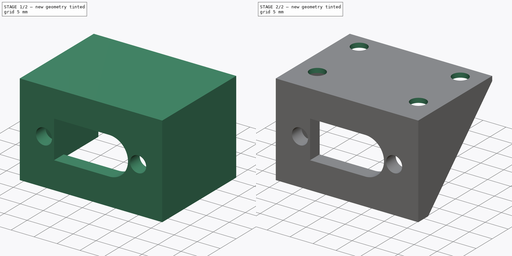
[diagram: build sequence overview — one tinted view per stage of 2, left to right]
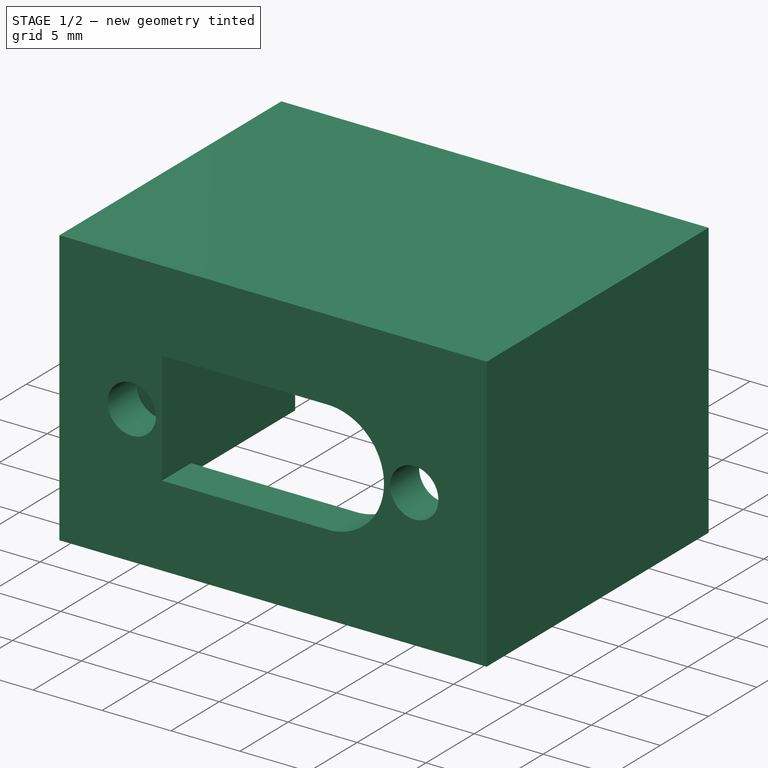
[diagram: stage 1 of 2 — iso view after this stage's code; geometry added in this stage tinted green]
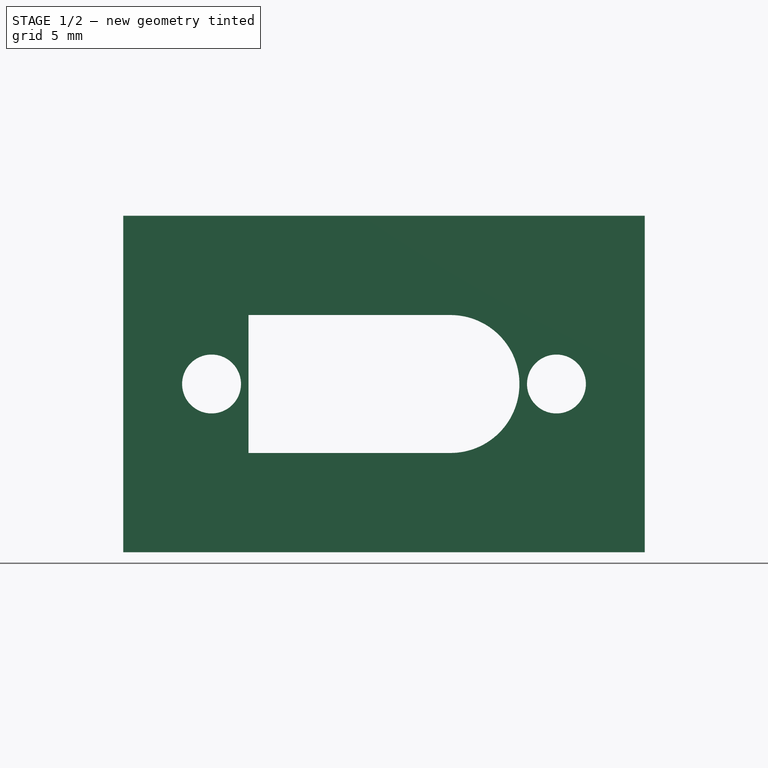
[diagram: stage 1 of 2 — front view after this stage's code; geometry added in this stage tinted green]
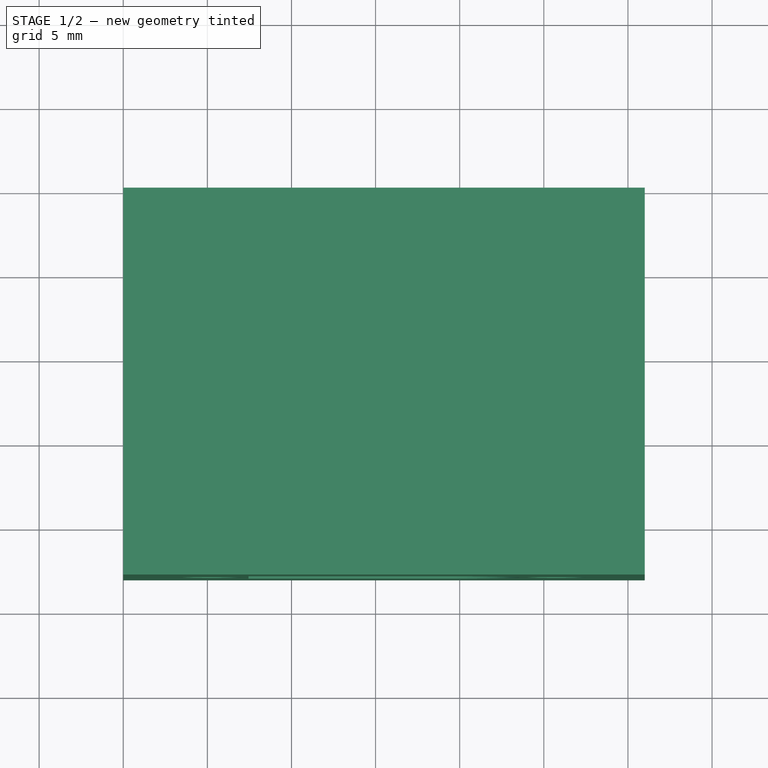
[diagram: stage 1 of 2 — top view after this stage's code; geometry added in this stage tinted green]
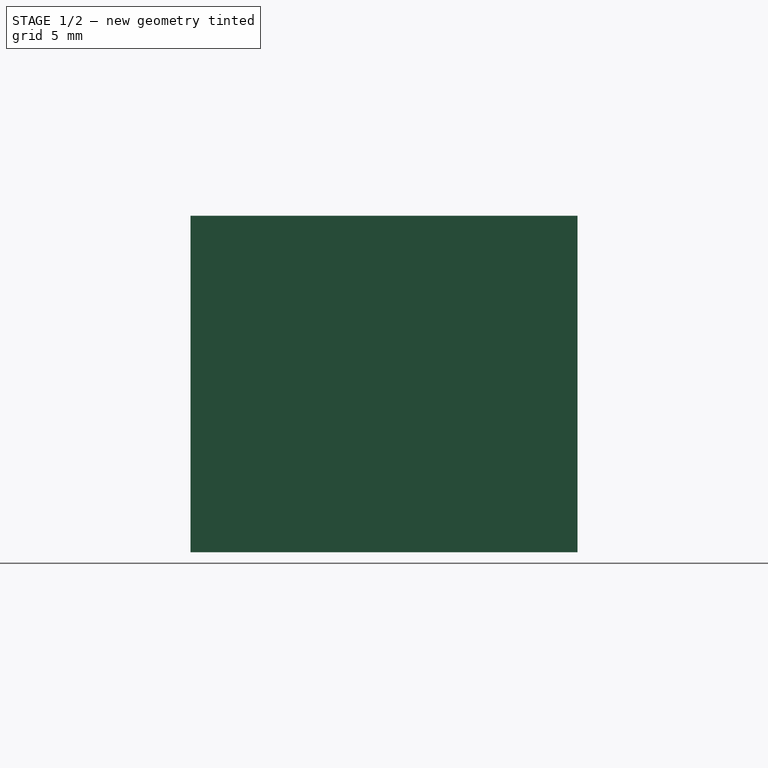
[diagram: stage 1 of 2 — right view after this stage's code; geometry added in this stage tinted green]
FCSTD DOCUMENT  (FreeCAD 0.19R24276 (Git))
Label: XT-60_female_blende
License: All rights reserved
LicenseURL: http://en.wikipedia.org/wiki/All_rights_reserved
objects: Sketcher::SketchObject×3, PartDesign::Pad×2, App::Part×1, PartDesign::Hole×1, PartDesign::Chamfer×1, PartDesign::Body×1
note: 12 computed .brp shape members not serialized (recipe doc carries the construction recipe); baked Part::Feature solids carry a one-line shape summary decoded from their .brp

FEATURE [App::Part] Part
  Origin = -> Origin
FEATURE [Sketcher::SketchObject] Sketch
  FullyConstrained = true
  MapMode = 5
  Placement = pos=(0,0,0) rot=(1,0,0;1.5708rad)
  Support = -> [XZ_Plane001]
  sketch-geometry (22):
    g0: LineSegment StartX=0 StartY=0 StartZ=0 EndX=31 EndY=0 EndZ=0
    g1: LineSegment StartX=31 StartY=0 StartZ=0 EndX=31 EndY=20 EndZ=0
    g2: LineSegment StartX=31 StartY=20 StartZ=0 EndX=0 EndY=20 EndZ=0
    g3: LineSegment StartX=0 StartY=20 StartZ=0 EndX=0 EndY=0 EndZ=0
    g4: Circle CenterX=25.75 CenterY=10 CenterZ=0 NormalX=0 NormalY=0 NormalZ=1 AngleXU=0 Radius=1.75
    g5: Circle CenterX=5.25 CenterY=10 CenterZ=0 NormalX=0 NormalY=0 NormalZ=1 AngleXU=0 Radius=1.75
    g6: ArcOfCircle CenterX=19.45 CenterY=10 CenterZ=0 NormalX=0 NormalY=0 NormalZ=1 AngleXU=0 Radius=4.1 StartAngle=4.71239 EndAngle=7.85398
    g7: LineSegment StartX=19.45 StartY=14.1 StartZ=0 EndX=19.45 EndY=5.9 EndZ=0
    g8: LineSegment StartX=19.45 StartY=14.1 StartZ=0 EndX=7.45 EndY=14.1 EndZ=0
    g9: LineSegment StartX=7.45 StartY=14.1 StartZ=0 EndX=7.45 EndY=5.9 EndZ=0
    g10: LineSegment StartX=7.45 StartY=5.9 StartZ=0 EndX=19.45 EndY=5.9 EndZ=0
    g11: LineSegment StartX=5.25 StartY=10 StartZ=0 EndX=25.75 EndY=10 EndZ=0
    g12: GeomPoint X=15.5 Y=10 Z=0
    g13: GeomPoint X=15.5 Y=20 Z=0
    g14: GeomPoint X=15.5 Y=0 Z=0
    g15: LineSegment StartX=15.5 StartY=20 StartZ=0 EndX=15.5 EndY=0 EndZ=0
    g16: GeomPoint X=23.55 Y=10 Z=0
    g17: LineSegment StartX=23.55 StartY=10 StartZ=0 EndX=19.45 EndY=10 EndZ=0
    g18: LineSegment StartX=7 StartY=10 StartZ=0 EndX=7.45 EndY=10 EndZ=0
    g19: LineSegment StartX=7 StartY=10 StartZ=0 EndX=7.45 EndY=10 EndZ=0
    g20: GeomPoint X=24 Y=10 Z=0
    g21: LineSegment StartX=23.55 StartY=10 StartZ=0 EndX=24 EndY=10 EndZ=0
  constraints (53):
    c: Coincident(g0,g1)
    c: Coincident(g1,g2)
    c: Coincident(g2,g3)
    c: Coincident(g3,g0)
    c: Horizontal(g0)
    c: Horizontal(g2)
    c: Vertical(g1)
    c: Vertical(g3)
    c: Coincident(g0,g-1)
    c: Equal(g5,g4)
    c: Radius(g5) = 1.75
    c: DistanceX(g5,g4) = 20.5
    c: Coincident(g7,g6)
    c: Coincident(g7,g6)
    c: Vertical(g7)
    c: PointOnObject(g6,g7)
    c: Coincident(g8,g6)
    c: Horizontal(g8)
    c: Coincident(g9,g8)
    c: Vertical(g9)
    c: Coincident(g10,g9)
    c: Coincident(g10,g6)
    c: Horizontal(g10)
    c: Coincident(g11,g5)
    c: Coincident(g11,g4)
    c: Horizontal(g11)
    c: PointOnObject(g14,g0)
    c: Symmetric(g14,g13,g12)
    c: DistanceY(g3,g3) = 20
    c: Coincident(g15,g13)
    c: Coincident(g15,g14)
    c: Vertical(g15)
    c: Symmetric(g1,g2,g13)
    c: Symmetric(g5,g4,g12)
    c: DistanceX(g2,g2) = 31
    c: DistanceY(g9,g9) = 8.2
    c: PointOnObject(g16,g6)
    c: Coincident(g17,g16)
    c: Coincident(g17,g6)
    c: Horizontal(g17)
    c: DistanceX(g8,g16) = 16.1
    c: PointOnObject(g6,g11)
    c: PointOnObject(g18,g11)
    c: PointOnObject(g18,g9)
    c: Horizontal(g18)
    c: PointOnObject(g18,g5)
    c: Coincident(g19,g18)
    c: Coincident(g19,g18)
    c: PointOnObject(g20,g4)
    c: PointOnObject(g20,g11)
    c: Coincident(g21,g16)
    c: Coincident(g21,g20)
    c: Equal(g19,g21)
FEATURE [PartDesign::Pad] Pad
  Direction = (1,1,1)
  Length = 3
  Length2 = 100
  Placement = pos=(0,0,0) rot=(1,0,0;1.5708rad)
  Profile = -> Sketch
  Type = 0
FEATURE [Sketcher::SketchObject] Sketch001
  ExternalGeometry = -> [Pad]
  FullyConstrained = true
  MapMode = 5
  Placement = pos=(0,0,0) rot=(-1,0,0;1.5708rad)
  Support = -> [Pad]
  sketch-geometry (8):
    g0: LineSegment StartX=31 StartY=0 StartZ=0 EndX=31 EndY=-20 EndZ=0
    g1: LineSegment StartX=31 StartY=-20 StartZ=0 EndX=0 EndY=-20 EndZ=0
    g2: LineSegment StartX=0 StartY=-20 StartZ=0 EndX=0 EndY=0 EndZ=0
    g3: LineSegment StartX=0 StartY=0 StartZ=0 EndX=1 EndY=0 EndZ=0
    g4: LineSegment StartX=1 StartY=0 StartZ=0 EndX=1 EndY=-19 EndZ=0
    g5: LineSegment StartX=1 StartY=-19 StartZ=0 EndX=30 EndY=-19 EndZ=0
    g6: LineSegment StartX=30 StartY=-19 StartZ=0 EndX=30 EndY=0 EndZ=0
    g7: LineSegment StartX=30 StartY=0 StartZ=0 EndX=31 EndY=0 EndZ=0
  constraints (20):
    c: Coincident(g0,g-5)
    c: Coincident(g0,g-4)
    c: Coincident(g1,g0)
    c: Coincident(g1,g-4)
    c: Coincident(g2,g1)
    c: Coincident(g2,g-1)
    c: Coincident(g3,g2)
    c: PointOnObject(g3,g-5)
    c: Coincident(g4,g3)
    c: Vertical(g4)
    c: Coincident(g5,g4)
    c: Horizontal(g5)
    c: Coincident(g6,g5)
    c: PointOnObject(g6,g-5)
    c: Vertical(g6)
    c: Coincident(g7,g6)
    c: Coincident(g7,g0)
    c: DistanceX(g3,g3) = 1
    c: Equal(g7,g3)
    c: Distance(g4,g1) = 1
FEATURE [PartDesign::Pad] Pad001
  BaseFeature = -> Pad
  Direction = (1,1,1)
  Length = 20
  Length2 = 100
  Placement = pos=(0,0,0) rot=(1,0,0;1.5708rad)
  Profile = -> Sketch001
  Type = 0
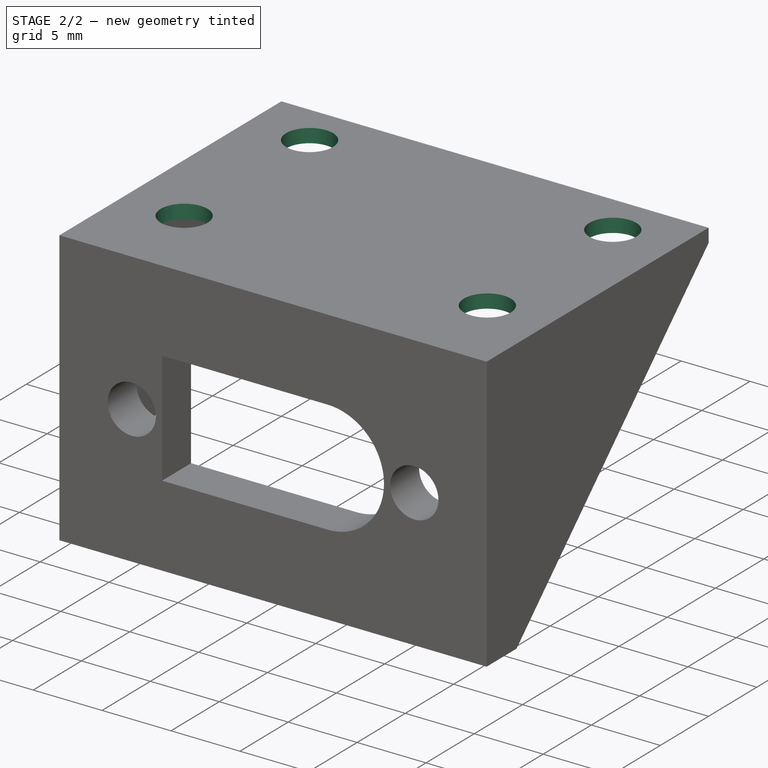
[diagram: stage 2 of 2 — iso view after this stage's code; geometry added in this stage tinted green]
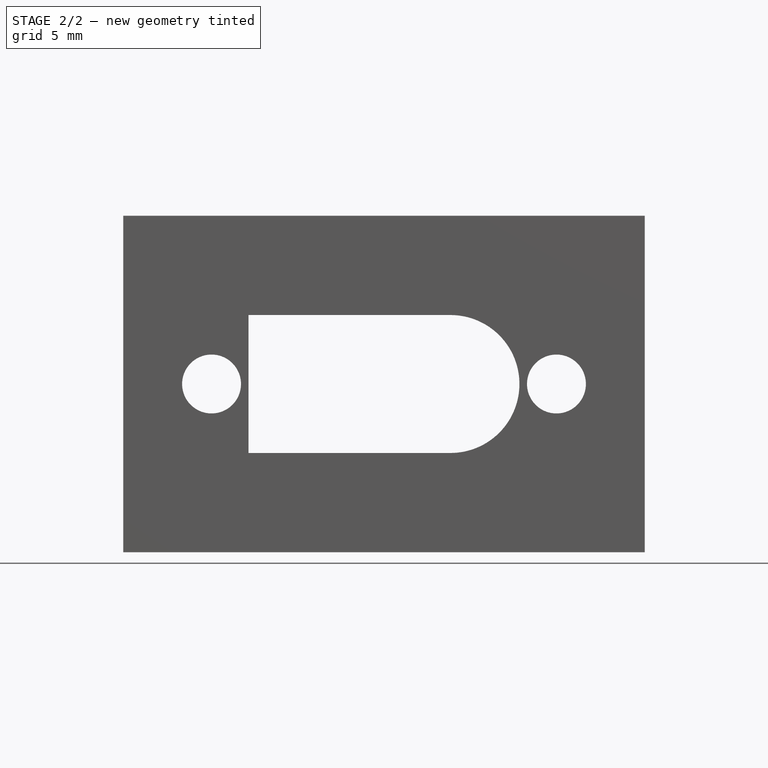
[diagram: stage 2 of 2 — front view after this stage's code; geometry added in this stage tinted green]
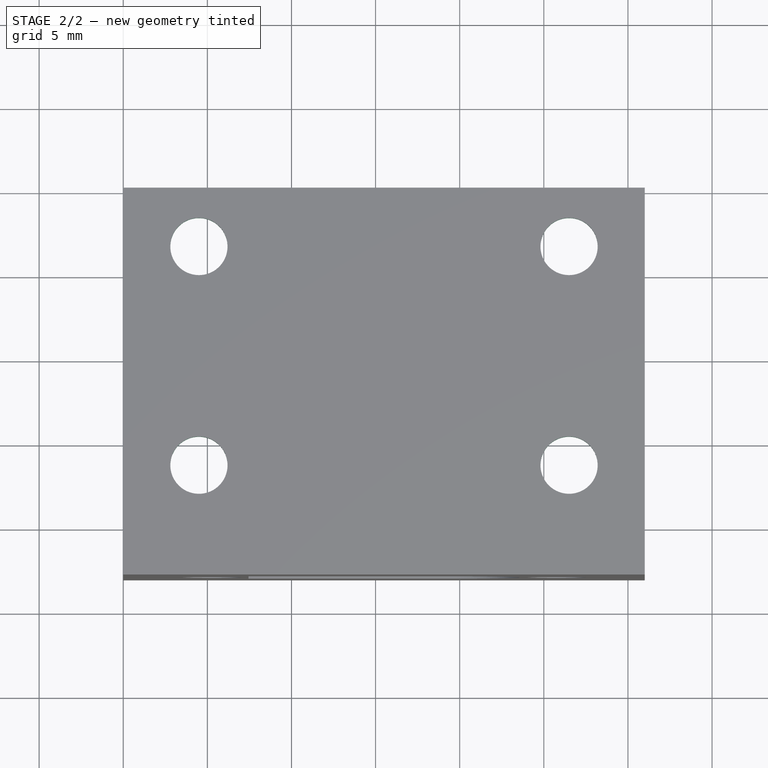
[diagram: stage 2 of 2 — top view after this stage's code; geometry added in this stage tinted green]
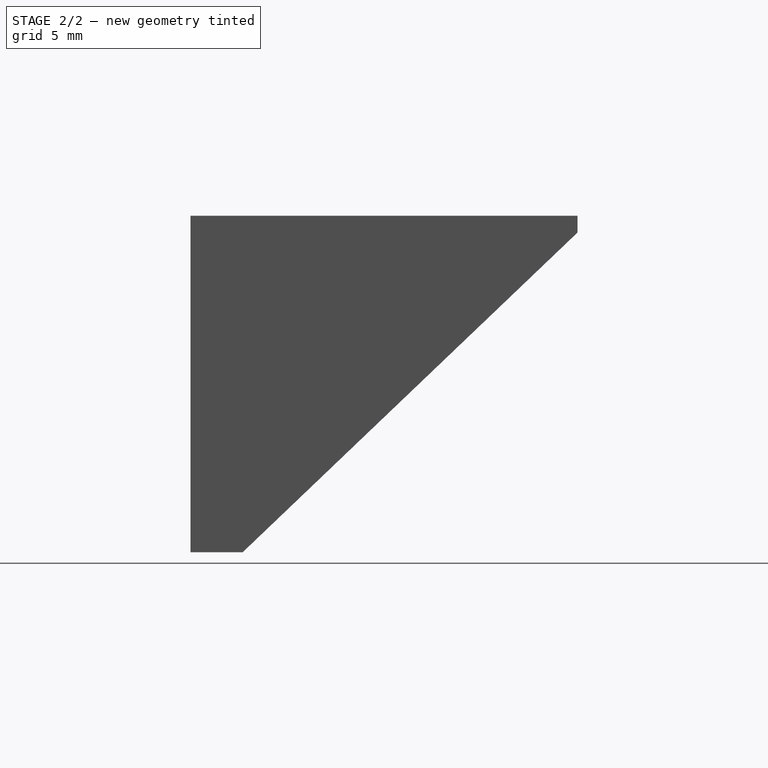
[diagram: stage 2 of 2 — right view after this stage's code; geometry added in this stage tinted green]
FEATURE [Sketcher::SketchObject] Sketch002
  ExternalGeometry = -> [Pad001]
  FullyConstrained = true
  MapMode = 5
  Placement = pos=(0,4.2e-15,19) rot=(1,0,0;3.14159rad)
  Support = -> [Pad001]
  sketch-geometry (8):
    g0: Circle CenterX=4.5 CenterY=-3.5 CenterZ=0 NormalX=0 NormalY=0 NormalZ=1 AngleXU=0 Radius=1.5
    g1: Circle CenterX=26.5 CenterY=-3.5 CenterZ=0 NormalX=0 NormalY=0 NormalZ=1 AngleXU=0 Radius=1.5
    g2: Circle CenterX=26.5 CenterY=-16.5 CenterZ=0 NormalX=0 NormalY=0 NormalZ=1 AngleXU=0 Radius=1.5
    g3: Circle CenterX=4.5 CenterY=-16.5 CenterZ=0 NormalX=0 NormalY=0 NormalZ=1 AngleXU=0 Radius=1.5
    g4: LineSegment StartX=4.5 StartY=-3.5 StartZ=0 EndX=26.5 EndY=-3.5 EndZ=0
    g5: LineSegment StartX=26.5 StartY=-3.5 StartZ=0 EndX=26.5 EndY=-16.5 EndZ=0
    g6: LineSegment StartX=26.5 StartY=-16.5 StartZ=0 EndX=4.5 EndY=-16.5 EndZ=0
    g7: LineSegment StartX=4.5 StartY=-16.5 StartZ=0 EndX=4.5 EndY=-3.5 EndZ=0
  constraints (20):
    c: Equal(g1,g0)
    c: Equal(g0,g3)
    c: Equal(g3,g2)
    c: Radius(g0) = 1.5
    c: Coincident(g4,g5)
    c: Coincident(g5,g6)
    c: Coincident(g6,g7)
    c: Coincident(g7,g4)
    c: Horizontal(g4)
    c: Horizontal(g6)
    c: Vertical(g5)
    c: Vertical(g7)
    c: Coincident(g4,g0)
    c: Coincident(g5,g2)
    c: Coincident(g3,g6)
    c: Coincident(g4,g1)
    c: DistanceY(g-5,g3) = 3.5
    c: Distance(g3,g-4) = 3.5
    c: Distance(g1,g-6) = 3.5
    c: Distance(g1,g-3) = 3.5
FEATURE [PartDesign::Hole] Hole
  BaseFeature = -> Pad001
  Depth = 25
  DepthType = 0
  Diameter = 3.4
  DrillForDepth = false
  DrillPoint = 1
  DrillPointAngle = 118
  HoleCutCountersinkAngle = 90
  HoleCutCustomValues = false
  HoleCutDepth = 0
  HoleCutDiameter = 6.1
  HoleCutType = 0
  ModelActualThread = false
  Placement = pos=(0,0,0) rot=(1,0,0;1.5708rad)
  Profile = -> Sketch002
  Tapered = false
  TaperedAngle = 90
  ThreadAngle = 0
  ThreadClass = 0
  ThreadCutOffInner = 0
  ThreadCutOffOuter = 0
  ThreadDirection = 0
  ThreadFit = 0
  ThreadPitch = 0
  ThreadSize = 9
  ThreadType = 1
  Threaded = false
FEATURE [PartDesign::Chamfer] Chamfer
  Angle = 45
  Base = -> Hole [Edge27,Edge15]
  BaseFeature = -> Hole
  ChamferType = 1
  FlipDirection = false
  Placement = pos=(0,0,0) rot=(1,0,0;1.5708rad)
  Size = 19.9
  Size2 = 19
  SupportTransform = false
FEATURE [PartDesign::Body] Body
  Group = -> [Sketch,Pad,Sketch001,Pad001,Sketch002,Hole,Chamfer]
  Origin = -> Origin001
  Tip = -> Chamfer
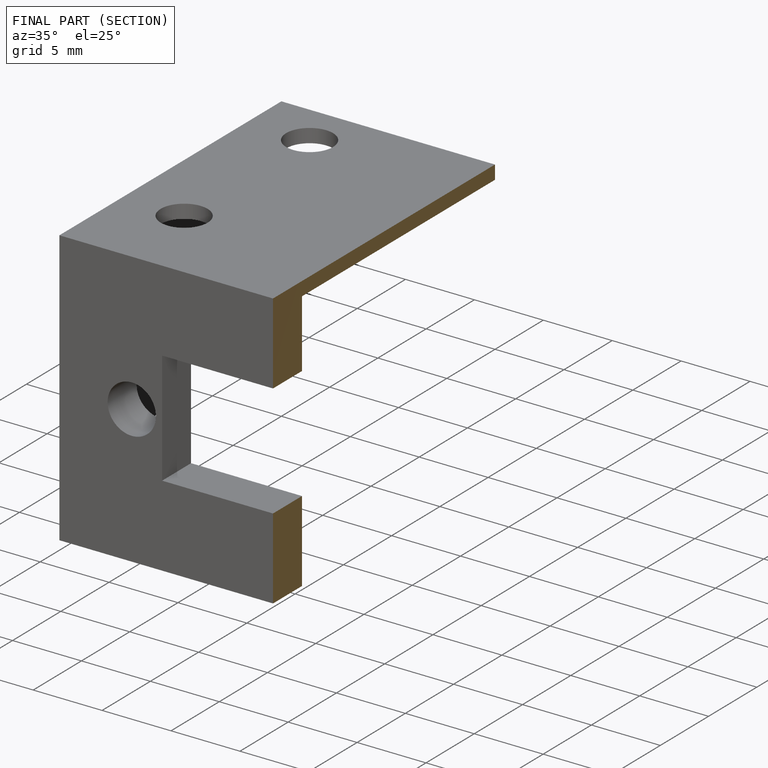
[diagram: finished part — half-section view (interior)]
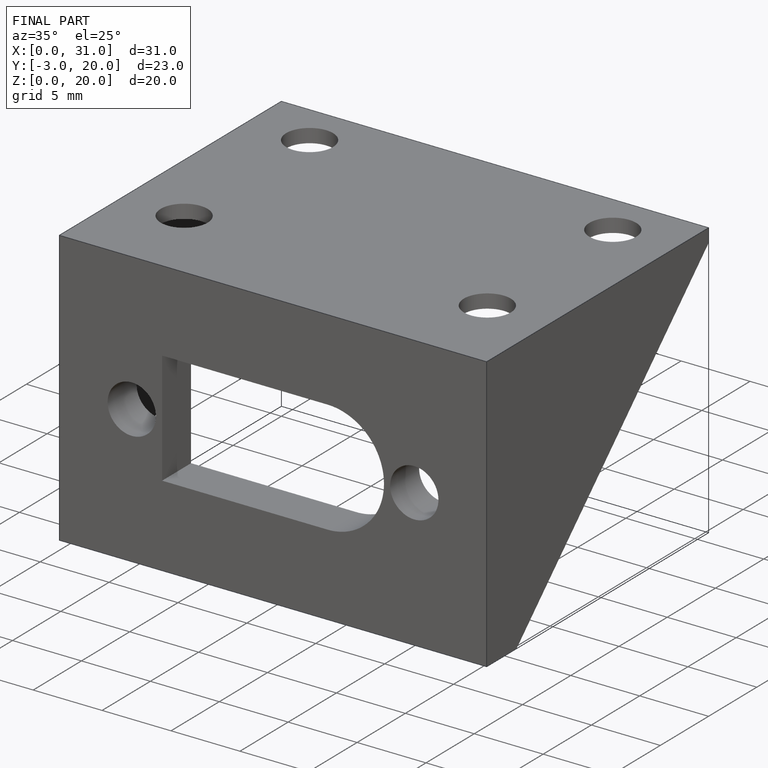
[diagram: finished part — iso view with bounding-box wireframe]
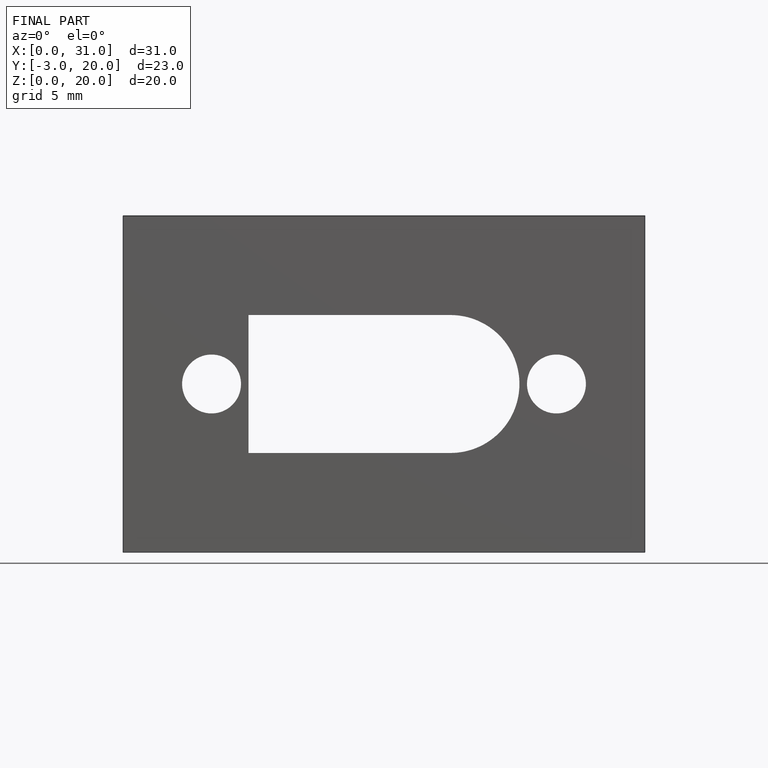
[diagram: finished part — front view with bounding-box wireframe]
